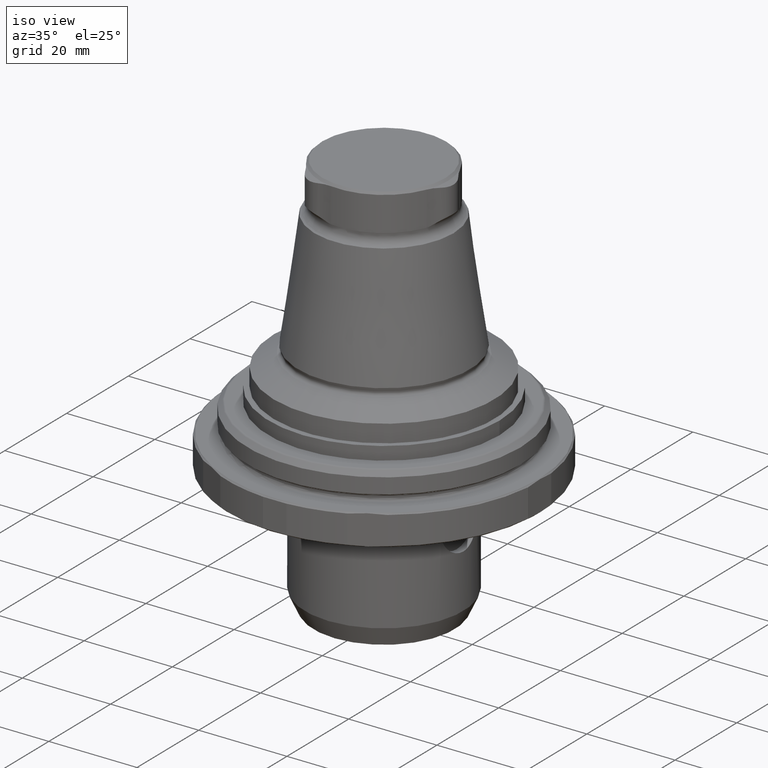
[diagram: clean part render]
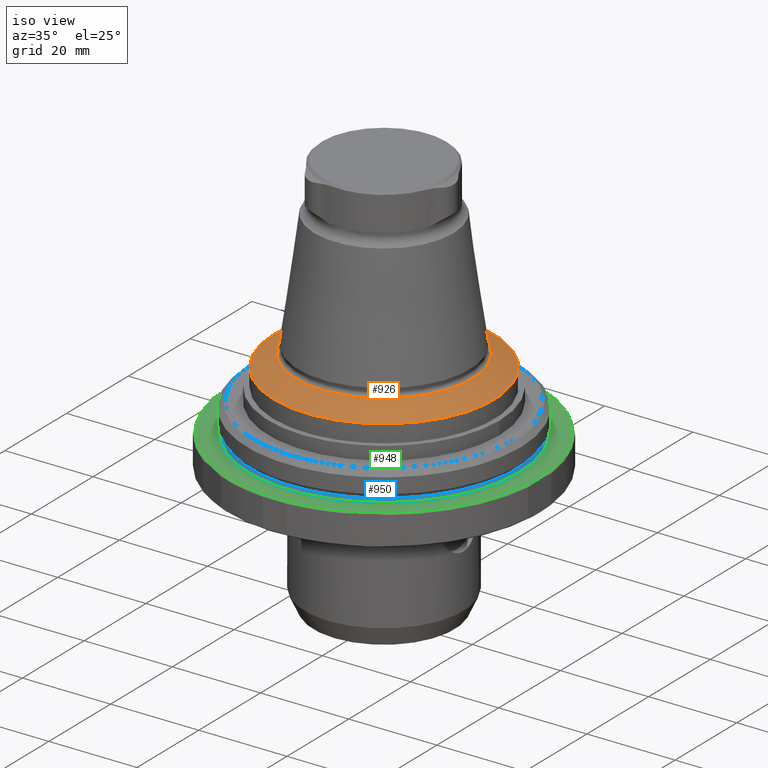
[diagram: same view with three faces highlighted in distinct colors, each labeled with its STEP entity id]
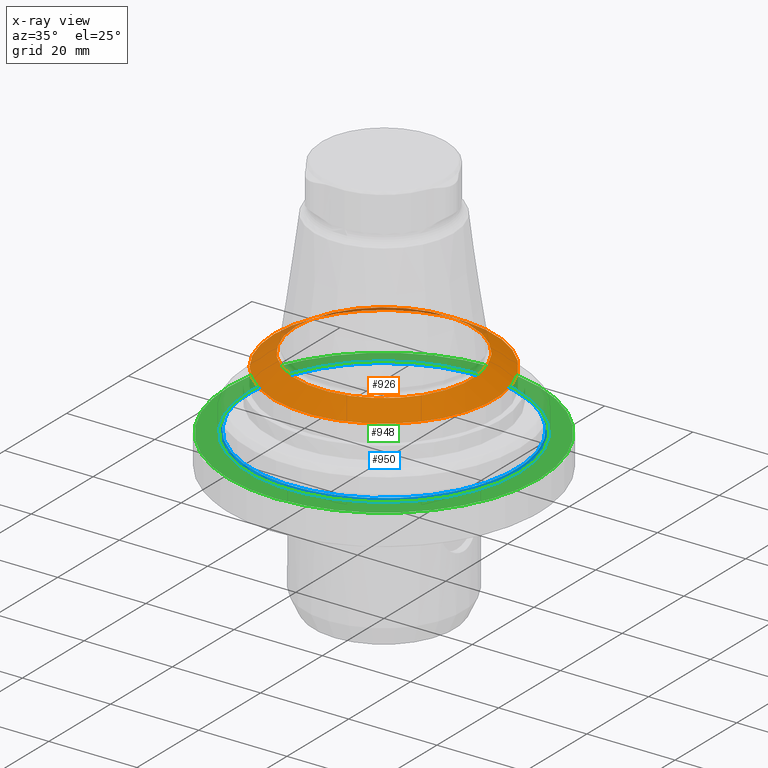
[diagram: x-ray of the same camera — body ghosted, the three highlighted faces saturated]
A machine part, iso view with three faces highlighted in distinct colors.
The next image is the same camera in x-ray (body ghosted, the three faces saturated) — at least one of them is partly hidden behind the body in this view.
Their STEP definitions:

[orange] entity #926 — the highlighted conical surface has half-angle 60 deg.
#92=CONICAL_SURFACE('',#1028,25.,1.0471975511966);
#136=CIRCLE('',#1027,19.9770526580503);
#137=CIRCLE('',#1029,25.);
#286=ORIENTED_EDGE('',*,*,#479,.T.);
#287=ORIENTED_EDGE('',*,*,#480,.F.);
#479=EDGE_CURVE('',#586,#586,#136,.T.);
#480=EDGE_CURVE('',#587,#587,#137,.T.);
#586=VERTEX_POINT('',#1625);
#587=VERTEX_POINT('',#1628);
#718=EDGE_LOOP('',(#286));
#719=EDGE_LOOP('',(#287));
#814=FACE_BOUND('',#718,.T.);
#815=FACE_BOUND('',#719,.T.);
#926=ADVANCED_FACE('',(#814,#815),#92,.T.);
#1027=AXIS2_PLACEMENT_3D('',#1624,#1213,#1214);
#1028=AXIS2_PLACEMENT_3D('',#1626,#1215,#1216);
#1029=AXIS2_PLACEMENT_3D('',#1627,#1217,#1218);
#1213=DIRECTION('',(-4.38328612912168E-16,-8.51929322185263E-24,-1.));
#1214=DIRECTION('',(-1.,9.77164313006873E-16,4.38328610599545E-16));
#1215=DIRECTION('',(-4.38328612912168E-16,-8.51929322185263E-24,-1.));
#1216=DIRECTION('',(-1.,9.77164313006873E-16,4.38328610599545E-16));
#1217=DIRECTION('',(-4.38328612912168E-16,-8.51929322185263E-24,-1.));
#1218=DIRECTION('',(-1.,9.77164313006873E-16,4.38328610599545E-16));
#1624=CARTESIAN_POINT('',(-8.10136170325717E-14,-9.81645350371424E-14,15.398889300107));
#1625=CARTESIAN_POINT('',(-19.9770526580504,-7.86436721006366E-14,15.398889300107));
#1626=CARTESIAN_POINT('',(-8.2284770010017E-14,-9.81645350618484E-14,12.498889300107));
#1627=CARTESIAN_POINT('',(-8.2284770010017E-14,-9.81645350618484E-14,12.498889300107));
#1628=CARTESIAN_POINT('',(-25.0000000000001,-7.37354272366765E-14,12.498889300107));

[blue] entity #950 — the highlighted toroidal blend (fillet) surface has major radius 30.65 mm and minor (blend) radius 0.6 mm.
#22=TOROIDAL_SURFACE('',#1075,30.65,0.6);
#158=CIRCLE('',#1072,30.65);
#160=CIRCLE('',#1076,30.05);
#396=ORIENTED_EDGE('',*,*,#533,.F.);
#397=ORIENTED_EDGE('',*,*,#535,.T.);
#533=EDGE_CURVE('',#624,#624,#158,.T.);
#535=EDGE_CURVE('',#626,#626,#160,.T.);
#624=VERTEX_POINT('',#1788);
#626=VERTEX_POINT('',#1794);
#750=EDGE_LOOP('',(#396));
#751=EDGE_LOOP('',(#397));
#846=FACE_BOUND('',#750,.T.);
#847=FACE_BOUND('',#751,.T.);
#950=ADVANCED_FACE('',(#846,#847),#22,.F.);
#1072=AXIS2_PLACEMENT_3D('',#1787,#1319,#1320);
#1075=AXIS2_PLACEMENT_3D('',#1792,#1325,#1326);
#1076=AXIS2_PLACEMENT_3D('',#1793,#1327,#1328);
#1319=DIRECTION('',(-5.47430718319515E-16,-4.76420379815137E-18,-1.));
#1320=DIRECTION('',(-1.,9.15933995315755E-16,5.47430716006892E-16));
#1325=DIRECTION('',(-5.47430718319515E-16,-4.76420379815137E-18,-1.));
#1326=DIRECTION('',(-1.,9.15933995315755E-16,5.47430716006892E-16));
#1327=DIRECTION('',(-5.47430718319515E-16,-4.76420379815137E-18,-1.));
#1328=DIRECTION('',(-1.,9.15933995315755E-16,5.47430716006892E-16));
#1787=CARTESIAN_POINT('',(-8.89108831179355E-14,-9.8195502446162E-14,-0.999999999999989));
#1788=CARTESIAN_POINT('',(-30.6500000000001,-7.01221254897341E-14,-0.999999999999972));
#1792=CARTESIAN_POINT('',(-8.85824246869438E-14,-9.81926439238831E-14,-0.399999999999989));
#1793=CARTESIAN_POINT('',(-8.85824246869438E-14,-9.81926439238831E-14,-0.399999999999989));
#1794=CARTESIAN_POINT('',(-30.0500000000001,-7.06688273646446E-14,-0.399999999999973));

[green] entity #948 — the highlighted planar face has unit normal (-0, -0, -1).
#109=PLANE('',#1071);
#143=CIRCLE('',#1040,35.2);
#158=CIRCLE('',#1072,30.65);
#392=ORIENTED_EDGE('',*,*,#533,.T.);
#393=ORIENTED_EDGE('',*,*,#488,.F.);
#488=EDGE_CURVE('',#595,#595,#143,.T.);
#533=EDGE_CURVE('',#624,#624,#158,.T.);
#595=VERTEX_POINT('',#1649);
#624=VERTEX_POINT('',#1788);
#746=EDGE_LOOP('',(#392));
#747=EDGE_LOOP('',(#393));
#842=FACE_BOUND('',#746,.T.);
#843=FACE_BOUND('',#747,.T.);
#948=ADVANCED_FACE('',(#842,#843),#109,.F.);
#1040=AXIS2_PLACEMENT_3D('',#1648,#1241,#1242);
#1071=AXIS2_PLACEMENT_3D('',#1786,#1317,#1318);
#1072=AXIS2_PLACEMENT_3D('',#1787,#1319,#1320);
#1241=DIRECTION('',(-5.47430718319515E-16,-4.76420379815137E-18,-1.));
#1242=DIRECTION('',(-1.,9.15933995315755E-16,5.47430716006892E-16));
#1317=DIRECTION('',(-5.47430718319515E-16,-4.76420379815137E-18,-1.));
#1318=DIRECTION('',(-1.,9.15933995315755E-16,5.47430716006892E-16));
#1319=DIRECTION('',(-5.47430718319515E-16,-4.76420379815137E-18,-1.));
#1320=DIRECTION('',(-1.,9.15933995315755E-16,5.47430716006892E-16));
#1648=CARTESIAN_POINT('',(-8.89108831179355E-14,-9.8195502446162E-14,-0.999999999999989));
#1649=CARTESIAN_POINT('',(-35.2000000000001,-6.59546258110474E-14,-0.99999999999997));
#1786=CARTESIAN_POINT('',(-30.6500000000001,-7.01221254897341E-14,-0.999999999999972));
#1787=CARTESIAN_POINT('',(-8.89108831179355E-14,-9.8195502446162E-14,-0.999999999999989));
#1788=CARTESIAN_POINT('',(-30.6500000000001,-7.01221254897341E-14,-0.999999999999972));